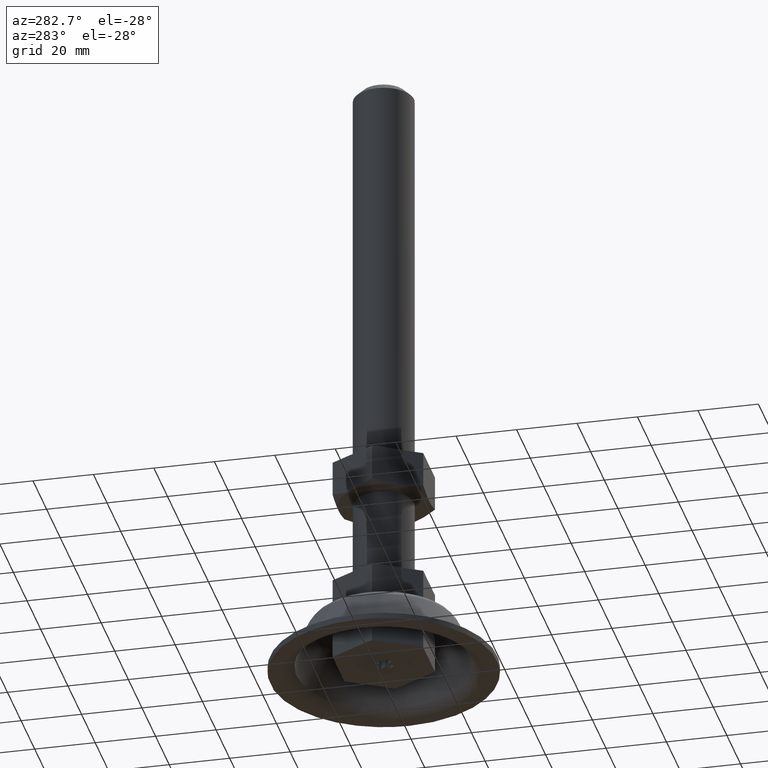
[diagram: clean part render]
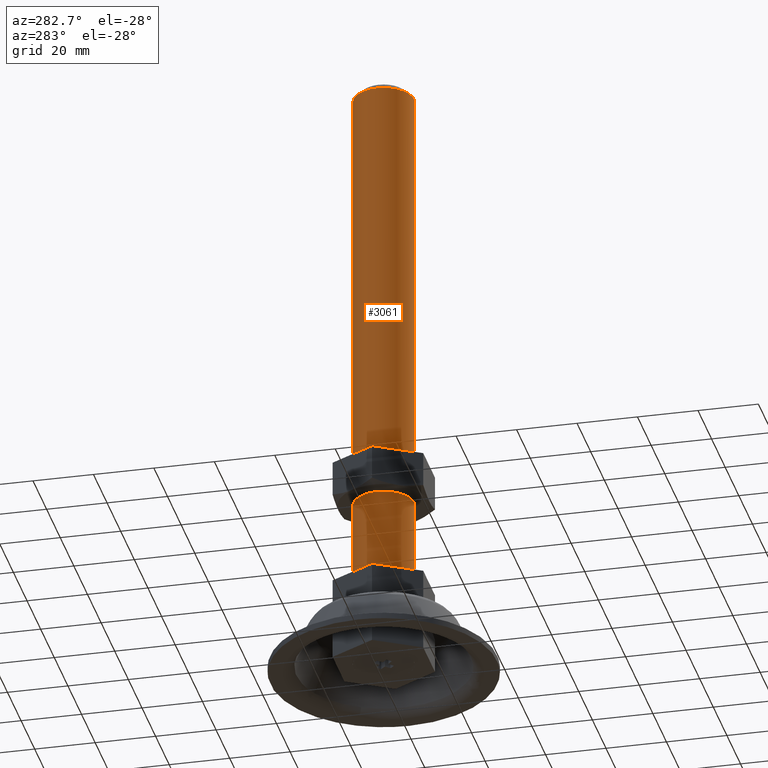
[diagram: same view with one face highlighted and labeled with its STEP entity id]
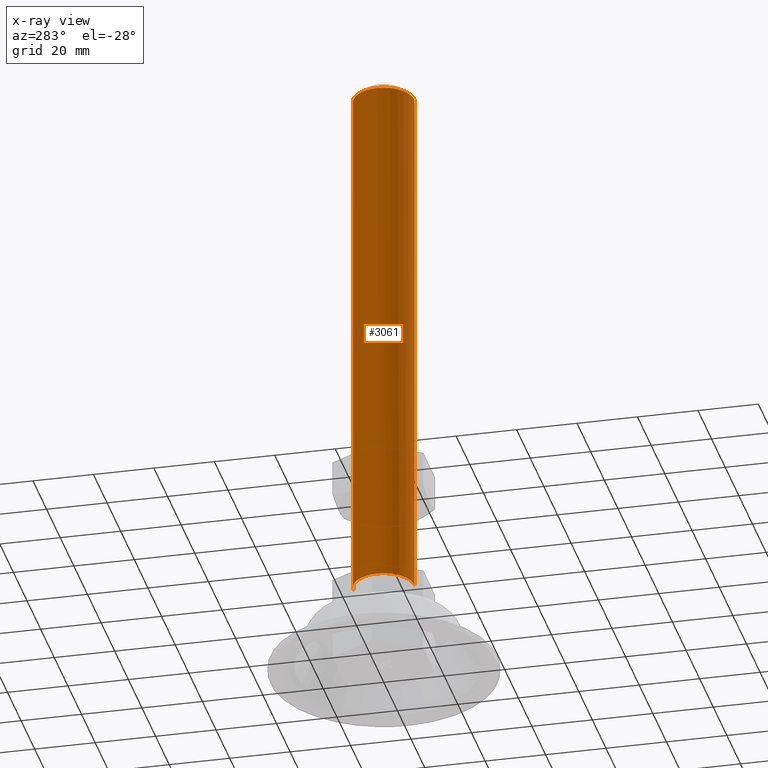
[diagram: x-ray of the same camera — body ghosted, the highlighted face saturated]
A machine part, auxiliary view. The second image highlights one B-rep face of the part: STEP entity #3061.
The next image is the same camera in x-ray: the body ghosted, the highlighted face saturated — about 0% of this face is hidden behind the body in this view.
In plain terms, the highlighted face is a freeform B-spline surface patch.
Its self-contained STEP definition (entity closure, byte-faithful):
#2792=CARTESIAN_POINT('',(-1.831236289805240,-9.830898923868014,208.499999999979510));
#2793=VERTEX_POINT('',#2792);
#2794=CARTESIAN_POINT('',(-10.0,0.0,208.500000000000000));
#2795=VERTEX_POINT('',#2794);
#2796=CARTESIAN_POINT('',(-1.831236289805240,-9.830898923868014,208.499999999979540));
#2797=CARTESIAN_POINT('',(-9.999999999999998,-8.309274434954869,208.499999999999910));
#2798=CARTESIAN_POINT('',(-10.0,0.0,208.500000000000000));
#2806=(BOUNDED_CURVE()B_SPLINE_CURVE(2,(#2796,#2797,#2798),.UNSPECIFIED.,.F.,.U.)B_SPLINE_CURVE_WITH_KNOTS((3,3),(0.281445263718905,0.500000000000000),.UNSPECIFIED.)CURVE()GEOMETRIC_REPRESENTATION_ITEM()RATIONAL_B_SPLINE_CURVE((0.935586817226765,0.743947199214820,1.0))REPRESENTATION_ITEM(''));
#2807=EDGE_CURVE('',#2793,#2795,#2806,.T.);
#2855=CARTESIAN_POINT('',(-0.610485395641896,9.981347984200728,208.500000000000000));
#2856=VERTEX_POINT('',#2855);
#2872=CARTESIAN_POINT('',(-10.0,0.0,208.500000000000000));
#2873=CARTESIAN_POINT('',(-10.0,9.407060668502986,208.500000000000060));
#2874=CARTESIAN_POINT('',(-0.610485395641896,9.981347984200728,208.500000000000000));
#2882=(BOUNDED_CURVE()B_SPLINE_CURVE(2,(#2872,#2873,#2874),.UNSPECIFIED.,.F.,.U.)B_SPLINE_CURVE_WITH_KNOTS((3,3),(0.500000000000000,0.739332962231826),.UNSPECIFIED.)CURVE()GEOMETRIC_REPRESENTATION_ITEM()RATIONAL_B_SPLINE_CURVE((1.0,0.719603993295048,0.976072041651466))REPRESENTATION_ITEM(''));
#2883=EDGE_CURVE('',#2795,#2856,#2882,.T.);
#2910=CARTESIAN_POINT('',(1.180342346672909,-9.930095263624143,208.500000000000000));
#2911=VERTEX_POINT('',#2910);
#2912=CARTESIAN_POINT('',(1.180342346672909,-9.930095263624141,208.499999999999970));
#2913=CARTESIAN_POINT('',(0.592241196625540,-10.0,208.499999999999970));
#2914=CARTESIAN_POINT('',(0.0,-10.0,208.500000000000000));
#2915=CARTESIAN_POINT('',(-0.923425759470462,-10.0,208.500000000000000));
#2916=CARTESIAN_POINT('',(-1.831236289805240,-9.830898923868014,208.499999999979540));
#2924=(BOUNDED_CURVE()B_SPLINE_CURVE(2,(#2912,#2913,#2914,#2915,#2916),.UNSPECIFIED.,.F.,.U.)B_SPLINE_CURVE_WITH_KNOTS((3,2,3),(0.229562473512059,0.250000000000000,0.281445263718905),.UNSPECIFIED.)CURVE()GEOMETRIC_REPRESENTATION_ITEM()RATIONAL_B_SPLINE_CURVE((0.956026754180859,0.976055948329447,1.0,0.963159581971728,0.935586817226765))REPRESENTATION_ITEM(''));
#2925=EDGE_CURVE('',#2911,#2793,#2924,.T.);
#2990=CARTESIAN_POINT('',(1.180342346567585,-9.930095263636664,212.937500000000110));
#2991=CARTESIAN_POINT('',(0.896147286379777,-9.963876154486057,212.937500000000000));
#2992=CARTESIAN_POINT('',(0.610485395348570,-9.981347984218667,212.937500000000000));
#2993=CARTESIAN_POINT('',(-9.370862588870097,-10.591833379567237,212.937500000000060));
#2994=CARTESIAN_POINT('',(-9.981347984218667,-0.610485395348570,212.937500000000000));
#2995=CARTESIAN_POINT('',(-10.591833379567237,9.370862588870097,212.937500000000060));
#2996=CARTESIAN_POINT('',(-0.610485395348570,9.981347984218667,212.937500000000000));
#2997=CARTESIAN_POINT('',(1.180342346567585,-9.930095263636664,26.451562499999994));
#2998=CARTESIAN_POINT('',(0.896147286379777,-9.963876154486057,26.451562499999987));
#2999=CARTESIAN_POINT('',(0.610485395348570,-9.981347984218667,26.451562499999991));
#3000=CARTESIAN_POINT('',(-9.370862588870097,-10.591833379567237,26.451562499999991));
#3001=CARTESIAN_POINT('',(-9.981347984218667,-0.610485395348570,26.451562499999991));
#3002=CARTESIAN_POINT('',(-10.591833379567237,9.370862588870097,26.451562499999991));
#3003=CARTESIAN_POINT('',(-0.610485395348570,9.981347984218667,26.451562499999991));
#3011=(BOUNDED_SURFACE()B_SPLINE_SURFACE(2,1,((#2990,#2997),(#2991,#2998),(#2992,#2999),(#2993,#3000),(#2994,#3001),(#2995,#3002),(#2996,#3003)),.UNSPECIFIED.,.F.,.F.,.U.)B_SPLINE_SURFACE_WITH_KNOTS((3,2,2,3),(2,2),(0.0,0.662741699796953,17.231284194720750,33.799826689644547),(0.0,186.485937500000090),.UNSPECIFIED.)GEOMETRIC_REPRESENTATION_ITEM()RATIONAL_B_SPLINE_SURFACE(((0.977505800795127,0.977505800795127),(0.988284271247462,0.988284271247462),(1.0,1.0),(0.707106781186548,0.707106781186548),(1.0,1.0),(0.707106781186548,0.707106781186548),(1.0,1.0)))REPRESENTATION_ITEM('')SURFACE());
#3012=CARTESIAN_POINT('',(1.180342346672909,-9.930095263624143,31.000000000000011));
#3013=VERTEX_POINT('',#3012);
#3014=CARTESIAN_POINT('',(-10.0,0.0,31.0));
#3015=VERTEX_POINT('',#3014);
#3016=CARTESIAN_POINT('',(1.180342346672909,-9.930095263624141,31.000000000000011));
#3017=CARTESIAN_POINT('',(0.592241196625540,-10.0,30.999999999999996));
#3018=CARTESIAN_POINT('',(0.0,-10.0,31.0));
#3019=CARTESIAN_POINT('',(-10.000000000000002,-10.000000000000002,31.000000000000007));
#3020=CARTESIAN_POINT('',(-10.0,0.0,31.0));
#3028=(BOUNDED_CURVE()B_SPLINE_CURVE(2,(#3016,#3017,#3018,#3019,#3020),.UNSPECIFIED.,.F.,.U.)B_SPLINE_CURVE_WITH_KNOTS((3,2,3),(0.229562473512059,0.250000000000000,0.500000000000000),.UNSPECIFIED.)CURVE()GEOMETRIC_REPRESENTATION_ITEM()RATIONAL_B_SPLINE_CURVE((0.956026754180859,0.976055948329447,1.0,0.707106781186548,1.0))REPRESENTATION_ITEM(''));
#3029=EDGE_CURVE('',#3013,#3015,#3028,.T.);
#3030=ORIENTED_EDGE('',*,*,#3029,.F.);
#3031=CARTESIAN_POINT('',(1.180342346672909,-9.930095263624143,208.500000000000000));
#3032=CARTESIAN_POINT('',(1.180342346672909,-9.930095263624143,31.000000000000011));
#3033=QUASI_UNIFORM_CURVE('',1,(#3031,#3032),.UNSPECIFIED.,.F.,.U.);
#3034=EDGE_CURVE('',#2911,#3013,#3033,.T.);
#3035=ORIENTED_EDGE('',*,*,#3034,.F.);
#3036=ORIENTED_EDGE('',*,*,#2925,.T.);
#3037=ORIENTED_EDGE('',*,*,#2807,.T.);
#3038=ORIENTED_EDGE('',*,*,#2883,.T.);
#3039=CARTESIAN_POINT('',(-0.610485395641900,9.981347984200728,31.000000000000011));
#3040=VERTEX_POINT('',#3039);
#3041=CARTESIAN_POINT('',(-0.610485395641896,9.981347984200728,208.500000000000000));
#3042=CARTESIAN_POINT('',(-0.610485395641900,9.981347984200728,31.000000000000011));
#3043=QUASI_UNIFORM_CURVE('',1,(#3041,#3042),.UNSPECIFIED.,.F.,.U.);
#3044=EDGE_CURVE('',#2856,#3040,#3043,.T.);
#3045=ORIENTED_EDGE('',*,*,#3044,.T.);
#3046=CARTESIAN_POINT('',(-10.0,0.0,31.0));
#3047=CARTESIAN_POINT('',(-10.0,9.407060668502986,30.999999999999996));
#3048=CARTESIAN_POINT('',(-0.610485395641900,9.981347984200728,31.000000000000014));
#3056=(BOUNDED_CURVE()B_SPLINE_CURVE(2,(#3046,#3047,#3048),.UNSPECIFIED.,.F.,.U.)B_SPLINE_CURVE_WITH_KNOTS((3,3),(0.500000000000000,0.739332962231826),.UNSPECIFIED.)CURVE()GEOMETRIC_REPRESENTATION_ITEM()RATIONAL_B_SPLINE_CURVE((1.0,0.719603993295048,0.976072041651466))REPRESENTATION_ITEM(''));
#3057=EDGE_CURVE('',#3015,#3040,#3056,.T.);
#3058=ORIENTED_EDGE('',*,*,#3057,.F.);
#3059=EDGE_LOOP('',(#3030,#3035,#3036,#3037,#3038,#3045,#3058));
#3060=FACE_OUTER_BOUND('',#3059,.T.);
#3061=ADVANCED_FACE('',(#3060),#3011,.T.);